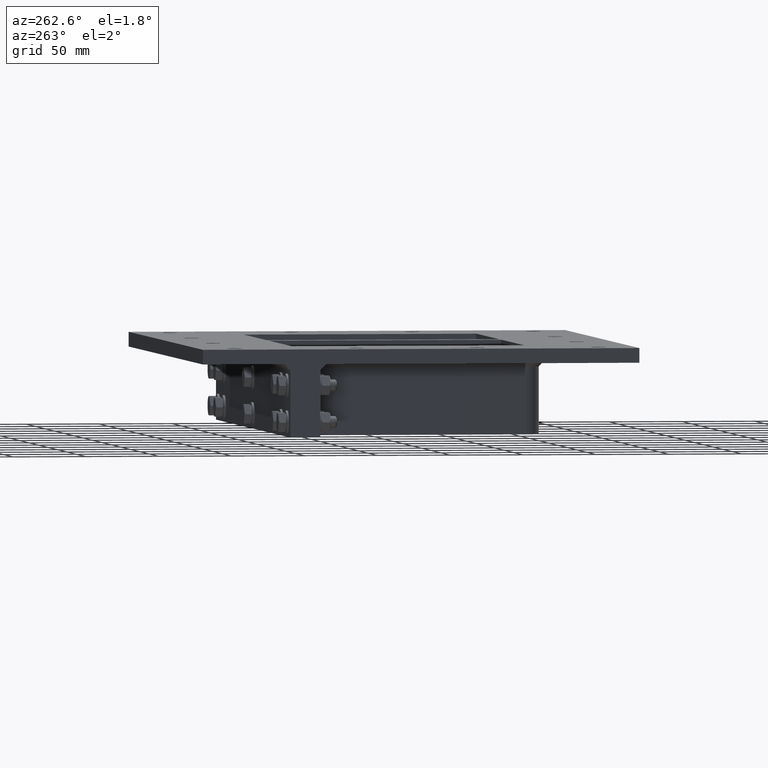
[diagram: clean part render]
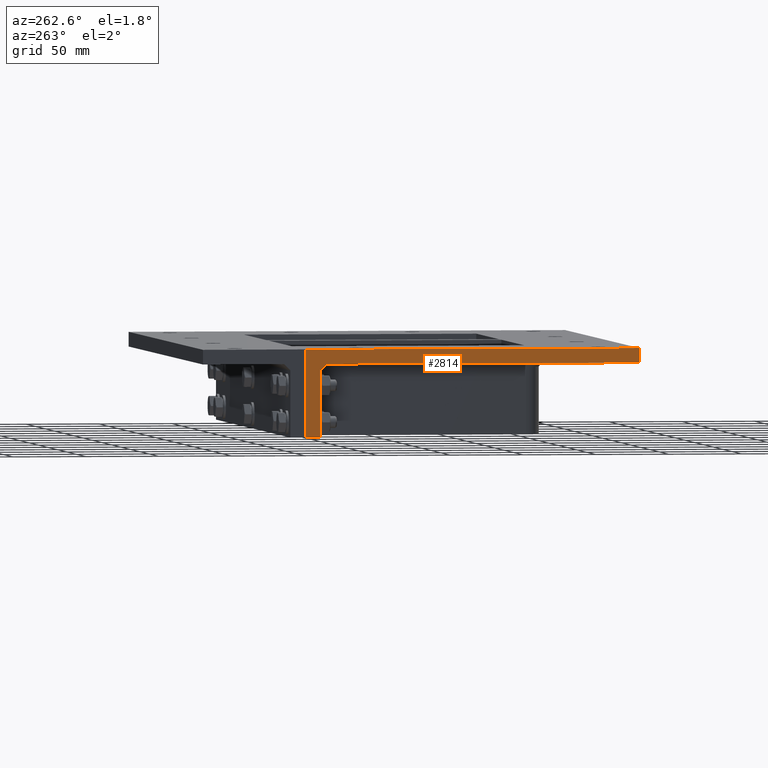
[diagram: same view with one face highlighted and labeled with its STEP entity id]
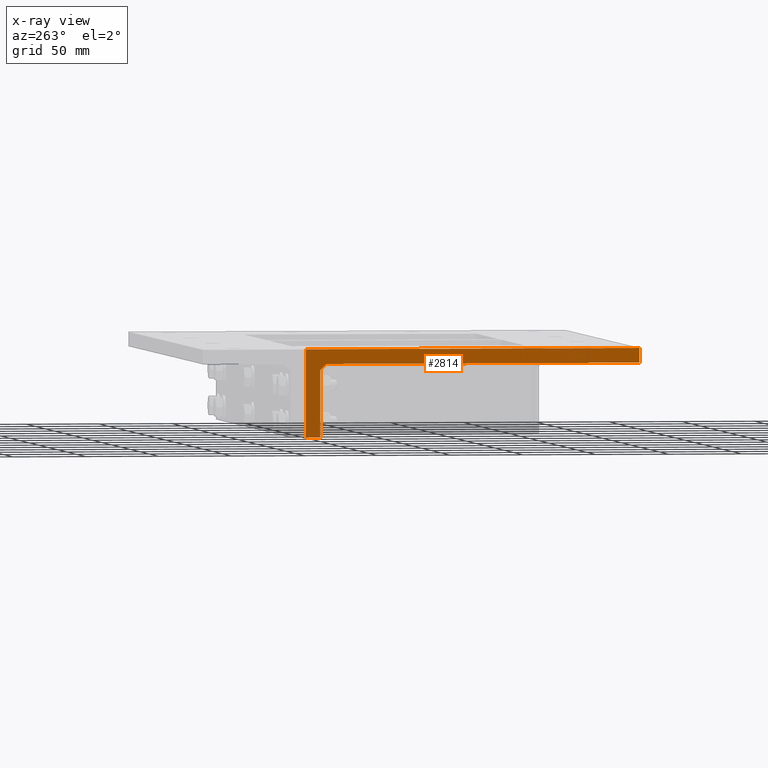
[diagram: x-ray of the same camera — body ghosted, the highlighted face saturated]
A machine part, auxiliary view. The second image highlights one B-rep face of the part: STEP entity #2814.
The next image is the same camera in x-ray: the body ghosted, the highlighted face saturated — about 0% of this face is hidden behind the body in this view.
In plain terms, the highlighted planar face has unit normal (-1, -0, 0).
Its self-contained STEP definition (entity closure, byte-faithful):
#485=FACE_OUTER_BOUND('',#660,.T.);
#660=EDGE_LOOP('',(#2063,#2064,#2065,#2066,#2067,#2068,#2069));
#869=LINE('',#4341,#1090);
#894=LINE('',#4398,#1115);
#898=LINE('',#4413,#1119);
#917=LINE('',#4503,#1138);
#918=LINE('',#4505,#1139);
#919=LINE('',#4507,#1140);
#920=LINE('',#4508,#1141);
#1090=VECTOR('',#3487,10.);
#1115=VECTOR('',#3540,10.);
#1119=VECTOR('',#3554,10.);
#1138=VECTOR('',#3651,10.);
#1139=VECTOR('',#3652,10.);
#1140=VECTOR('',#3653,10.);
#1141=VECTOR('',#3654,10.);
#1311=VERTEX_POINT('',#4339);
#1312=VERTEX_POINT('',#4340);
#1330=VERTEX_POINT('',#4397);
#1336=VERTEX_POINT('',#4411);
#1368=VERTEX_POINT('',#4502);
#1369=VERTEX_POINT('',#4504);
#1370=VERTEX_POINT('',#4506);
#1558=EDGE_CURVE('',#1311,#1312,#869,.T.);
#1587=EDGE_CURVE('',#1312,#1330,#894,.T.);
#1595=EDGE_CURVE('',#1336,#1311,#898,.T.);
#1638=EDGE_CURVE('',#1368,#1336,#917,.T.);
#1639=EDGE_CURVE('',#1369,#1368,#918,.T.);
#1640=EDGE_CURVE('',#1369,#1370,#919,.T.);
#1641=EDGE_CURVE('',#1330,#1370,#920,.T.);
#2063=ORIENTED_EDGE('',*,*,#1595,.F.);
#2064=ORIENTED_EDGE('',*,*,#1638,.F.);
#2065=ORIENTED_EDGE('',*,*,#1639,.F.);
#2066=ORIENTED_EDGE('',*,*,#1640,.T.);
#2067=ORIENTED_EDGE('',*,*,#1641,.F.);
#2068=ORIENTED_EDGE('',*,*,#1587,.F.);
#2069=ORIENTED_EDGE('',*,*,#1558,.F.);
#2714=PLANE('',#3221);
#2814=ADVANCED_FACE('',(#485),#2714,.T.);
#3221=AXIS2_PLACEMENT_3D('',#4501,#3649,#3650);
#3487=DIRECTION('',(-3.35512244927418E-16,0.707106781186547,-0.707106781186548));
#3540=DIRECTION('',(0.,0.,-1.));
#3554=DIRECTION('',(-4.74485967118598E-16,1.,0.));
#3649=DIRECTION('center_axis',(-1.,-4.74485967118598E-16,0.));
#3650=DIRECTION('ref_axis',(-4.74485967118598E-16,1.,0.));
#3651=DIRECTION('',(0.,0.,-1.));
#3652=DIRECTION('',(4.74485967118598E-16,-1.,0.));
#3653=DIRECTION('',(0.,0.,-1.));
#3654=DIRECTION('',(3.5527136788005E-15,1.,0.));
#4339=CARTESIAN_POINT('',(-196.5,64.95,-10.));
#4340=CARTESIAN_POINT('',(-196.5,69.25,-14.3));
#4341=CARTESIAN_POINT('',(-196.5,9.85,45.1));
#4397=CARTESIAN_POINT('',(-196.5,69.25,-60.));
#4398=CARTESIAN_POINT('',(-196.5,69.25,0.));
#4411=CARTESIAN_POINT('',(-196.5,-149.75,-10.));
#4413=CARTESIAN_POINT('',(-196.5,149.75,-10.));
#4501=CARTESIAN_POINT('Origin',(-196.5,-149.75,0.));
#4502=CARTESIAN_POINT('',(-196.5,-149.75,0.));
#4503=CARTESIAN_POINT('',(-196.5,-149.75,0.));
#4504=CARTESIAN_POINT('',(-196.5,79.25,0.));
#4505=CARTESIAN_POINT('',(-196.5,149.75,0.));
#4506=CARTESIAN_POINT('',(-196.5,79.25,-60.));
#4507=CARTESIAN_POINT('',(-196.5,79.25,0.));
#4508=CARTESIAN_POINT('',(-196.5,79.25,-60.));